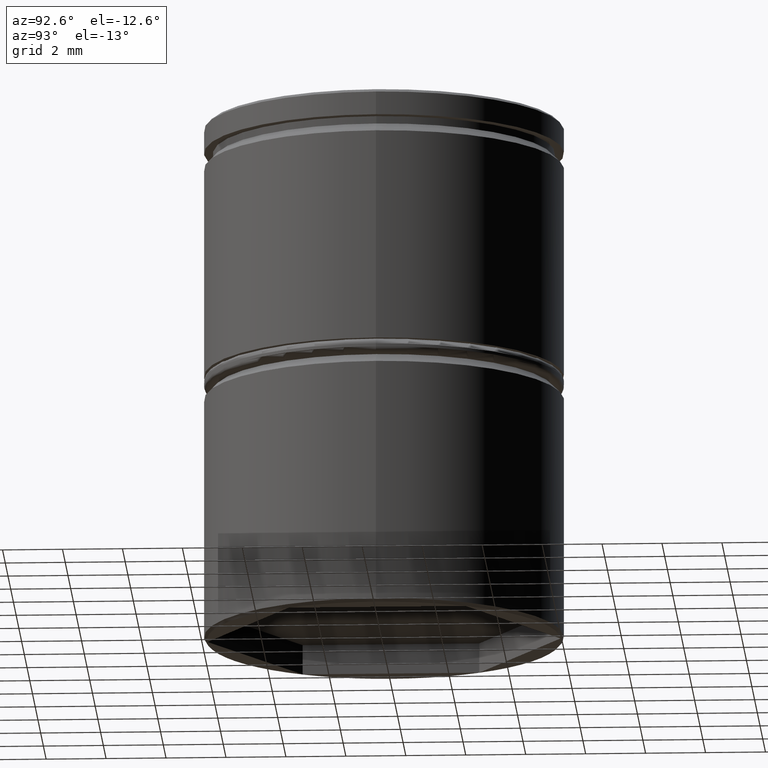
[diagram: clean part render]
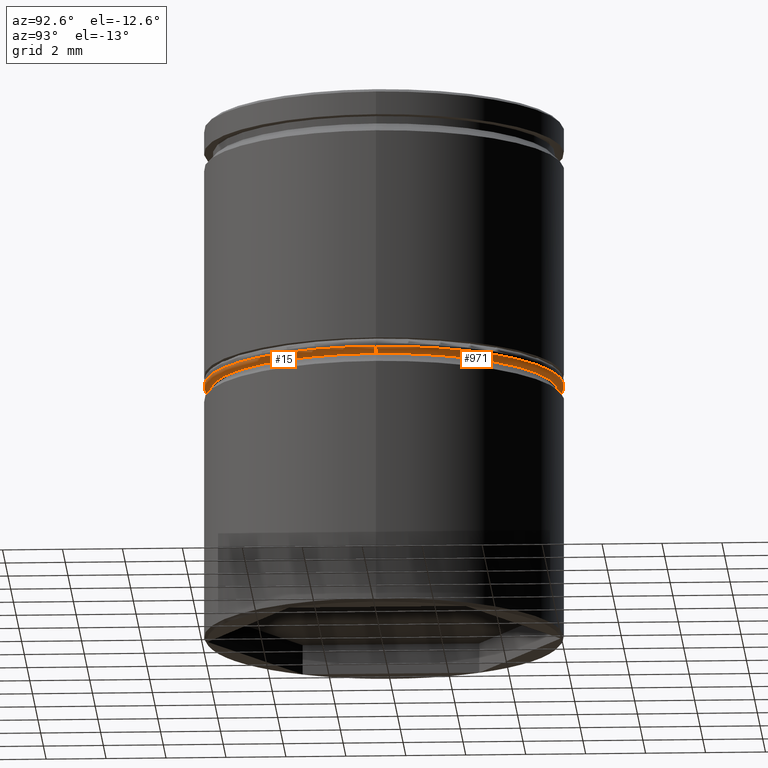
[diagram: same view with one multi-face feature highlighted, each face labeled with its STEP entity id]
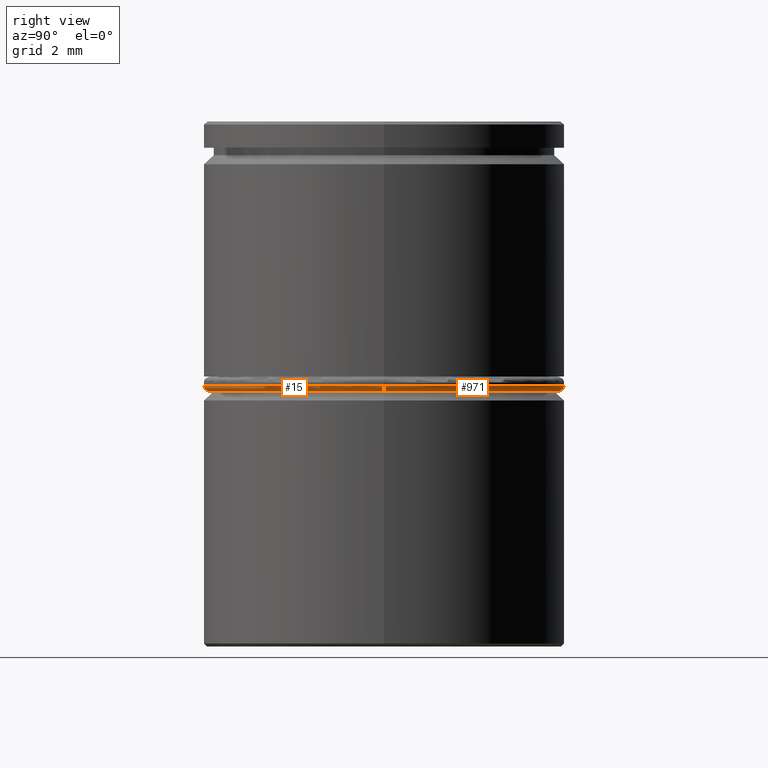
[diagram: same view with one multi-face feature highlighted, each face labeled with its STEP entity id]
A machine part, auxiliary view. The highlighted faces form ONE feature: a constant-radius fillet chain: 2 tangent blend faces with common blend radius 0.2 mm. The faces share edges in the B-rep.
A second angle (right view) of the same feature is appended — it is thin or edge-on in the first view.
Their STEP definitions:
[1] entity #15 (Torus):
#8 = EDGE_LOOP ( 'NONE', ( #187, #322, #51, #518 ) ) ;
#15 = ADVANCED_FACE ( 'NONE', ( #419 ), #476, .T. ) ;
#17 = DIRECTION ( 'NONE',  ( 0.000000000000000000, 0.000000000000000000, -1.000000000000000000 ) ) ;
#24 = DIRECTION ( 'NONE',  ( 1.224646799147353207E-16, 1.000000000000000000, -0.000000000000000000 ) ) ;
#27 = CARTESIAN_POINT ( 'NONE',  ( -6.000000000000000888, 7.347880794884120722E-16, -8.800000000000002487 ) ) ;
#41 = VERTEX_POINT ( 'NONE', #27 ) ;
#51 = ORIENTED_EDGE ( 'NONE', *, *, #468, .T. ) ;
#109 = DIRECTION ( 'NONE',  ( 1.000000000000000000, 0.000000000000000000, 0.000000000000000000 ) ) ;
#110 = VERTEX_POINT ( 'NONE', #835 ) ;
#119 = AXIS2_PLACEMENT_3D ( 'NONE', #677, #968, #109 ) ;
#141 = CARTESIAN_POINT ( 'NONE',  ( 0.000000000000000000, 0.000000000000000000, -9.000000000000001776 ) ) ;
#148 = CIRCLE ( 'NONE', #772, 5.800000000000001599 ) ;
#175 = VERTEX_POINT ( 'NONE', #521 ) ;
#187 = ORIENTED_EDGE ( 'NONE', *, *, #530, .F. ) ;
#189 = DIRECTION ( 'NONE',  ( 0.000000000000000000, -1.000000000000000000, 0.000000000000000000 ) ) ;
#241 = AXIS2_PLACEMENT_3D ( 'NONE', #388, #865, #621 ) ;
#257 = CIRCLE ( 'NONE', #241, 6.000000000000000888 ) ;
#258 = CARTESIAN_POINT ( 'NONE',  ( 5.800000000000001599, 0.000000000000000000, -8.800000000000002487 ) ) ;
#304 = EDGE_CURVE ( 'NONE', #41, #110, #257, .T. ) ;
#322 = ORIENTED_EDGE ( 'NONE', *, *, #651, .F. ) ;
#388 = CARTESIAN_POINT ( 'NONE',  ( 0.000000000000000000, 0.000000000000000000, -8.800000000000002487 ) ) ;
#396 = CIRCLE ( 'NONE', #787, 0.2000000000000005107 ) ;
#418 = CARTESIAN_POINT ( 'NONE',  ( -5.800000000000001599, 7.225416114969385180E-16, -9.000000000000001776 ) ) ;
#419 = FACE_OUTER_BOUND ( 'NONE', #8, .T. ) ;
#468 = EDGE_CURVE ( 'NONE', #175, #110, #396, .T. ) ;
#476 = TOROIDAL_SURFACE ( 'NONE', #119, 5.800000000000001599, 0.2000000000000000111 ) ;
#501 = DIRECTION ( 'NONE',  ( -1.000000000000000000, 1.224646799147353454E-16, 0.000000000000000000 ) ) ;
#518 = ORIENTED_EDGE ( 'NONE', *, *, #304, .F. ) ;
#521 = CARTESIAN_POINT ( 'NONE',  ( 5.800000000000001599, 0.000000000000000000, -9.000000000000001776 ) ) ;
#530 = EDGE_CURVE ( 'NONE', #873, #41, #847, .T. ) ;
#551 = DIRECTION ( 'NONE',  ( 1.000000000000000000, 0.000000000000000000, 0.000000000000000000 ) ) ;
#621 = DIRECTION ( 'NONE',  ( 1.000000000000000000, 0.000000000000000000, 0.000000000000000000 ) ) ;
#651 = EDGE_CURVE ( 'NONE', #175, #873, #148, .T. ) ;
#677 = CARTESIAN_POINT ( 'NONE',  ( 0.000000000000000000, 0.000000000000000000, -8.800000000000002487 ) ) ;
#705 = DIRECTION ( 'NONE',  ( -0.000000000000000000, -0.000000000000000000, -1.000000000000000000 ) ) ;
#772 = AXIS2_PLACEMENT_3D ( 'NONE', #141, #705, #551 ) ;
#787 = AXIS2_PLACEMENT_3D ( 'NONE', #258, #189, #17 ) ;
#798 = CARTESIAN_POINT ( 'NONE',  ( -5.800000000000001599, 7.102951435054649637E-16, -8.800000000000002487 ) ) ;
#835 = CARTESIAN_POINT ( 'NONE',  ( 6.000000000000000888, 0.000000000000000000, -8.800000000000002487 ) ) ;
#847 = CIRCLE ( 'NONE', #895, 0.1999999999999996503 ) ;
#865 = DIRECTION ( 'NONE',  ( 0.000000000000000000, 0.000000000000000000, 1.000000000000000000 ) ) ;
#873 = VERTEX_POINT ( 'NONE', #418 ) ;
#895 = AXIS2_PLACEMENT_3D ( 'NONE', #798, #24, #501 ) ;
#968 = DIRECTION ( 'NONE',  ( 0.000000000000000000, 0.000000000000000000, 1.000000000000000000 ) ) ;
[2] entity #971 (Torus):
#14 = ORIENTED_EDGE ( 'NONE', *, *, #855, .F. ) ;
#17 = DIRECTION ( 'NONE',  ( 0.000000000000000000, 0.000000000000000000, -1.000000000000000000 ) ) ;
#24 = DIRECTION ( 'NONE',  ( 1.224646799147353207E-16, 1.000000000000000000, -0.000000000000000000 ) ) ;
#27 = CARTESIAN_POINT ( 'NONE',  ( -6.000000000000000888, 7.347880794884120722E-16, -8.800000000000002487 ) ) ;
#31 = DIRECTION ( 'NONE',  ( 0.000000000000000000, 0.000000000000000000, 1.000000000000000000 ) ) ;
#41 = VERTEX_POINT ( 'NONE', #27 ) ;
#54 = ORIENTED_EDGE ( 'NONE', *, *, #468, .F. ) ;
#98 = AXIS2_PLACEMENT_3D ( 'NONE', #746, #31, #195 ) ;
#110 = VERTEX_POINT ( 'NONE', #835 ) ;
#175 = VERTEX_POINT ( 'NONE', #521 ) ;
#183 = DIRECTION ( 'NONE',  ( 0.000000000000000000, 0.000000000000000000, 1.000000000000000000 ) ) ;
#189 = DIRECTION ( 'NONE',  ( 0.000000000000000000, -1.000000000000000000, 0.000000000000000000 ) ) ;
#195 = DIRECTION ( 'NONE',  ( 1.000000000000000000, 0.000000000000000000, 0.000000000000000000 ) ) ;
#258 = CARTESIAN_POINT ( 'NONE',  ( 5.800000000000001599, 0.000000000000000000, -8.800000000000002487 ) ) ;
#283 = ORIENTED_EDGE ( 'NONE', *, *, #530, .T. ) ;
#312 = CIRCLE ( 'NONE', #361, 6.000000000000000888 ) ;
#361 = AXIS2_PLACEMENT_3D ( 'NONE', #880, #183, #496 ) ;
#378 = CIRCLE ( 'NONE', #657, 5.800000000000001599 ) ;
#396 = CIRCLE ( 'NONE', #787, 0.2000000000000005107 ) ;
#418 = CARTESIAN_POINT ( 'NONE',  ( -5.800000000000001599, 7.225416114969385180E-16, -9.000000000000001776 ) ) ;
#468 = EDGE_CURVE ( 'NONE', #175, #110, #396, .T. ) ;
#473 = TOROIDAL_SURFACE ( 'NONE', #98, 5.800000000000001599, 0.2000000000000000111 ) ;
#483 = EDGE_LOOP ( 'NONE', ( #14, #283, #914, #54 ) ) ;
#496 = DIRECTION ( 'NONE',  ( 1.000000000000000000, 0.000000000000000000, 0.000000000000000000 ) ) ;
#501 = DIRECTION ( 'NONE',  ( -1.000000000000000000, 1.224646799147353454E-16, 0.000000000000000000 ) ) ;
#521 = CARTESIAN_POINT ( 'NONE',  ( 5.800000000000001599, 0.000000000000000000, -9.000000000000001776 ) ) ;
#530 = EDGE_CURVE ( 'NONE', #873, #41, #847, .T. ) ;
#569 = DIRECTION ( 'NONE',  ( -0.000000000000000000, -0.000000000000000000, -1.000000000000000000 ) ) ;
#644 = DIRECTION ( 'NONE',  ( 1.000000000000000000, 0.000000000000000000, 0.000000000000000000 ) ) ;
#657 = AXIS2_PLACEMENT_3D ( 'NONE', #719, #569, #644 ) ;
#719 = CARTESIAN_POINT ( 'NONE',  ( 0.000000000000000000, 0.000000000000000000, -9.000000000000001776 ) ) ;
#739 = FACE_OUTER_BOUND ( 'NONE', #483, .T. ) ;
#746 = CARTESIAN_POINT ( 'NONE',  ( 0.000000000000000000, 0.000000000000000000, -8.800000000000002487 ) ) ;
#787 = AXIS2_PLACEMENT_3D ( 'NONE', #258, #189, #17 ) ;
#798 = CARTESIAN_POINT ( 'NONE',  ( -5.800000000000001599, 7.102951435054649637E-16, -8.800000000000002487 ) ) ;
#835 = CARTESIAN_POINT ( 'NONE',  ( 6.000000000000000888, 0.000000000000000000, -8.800000000000002487 ) ) ;
#847 = CIRCLE ( 'NONE', #895, 0.1999999999999996503 ) ;
#855 = EDGE_CURVE ( 'NONE', #873, #175, #378, .T. ) ;
#873 = VERTEX_POINT ( 'NONE', #418 ) ;
#880 = CARTESIAN_POINT ( 'NONE',  ( 0.000000000000000000, 0.000000000000000000, -8.800000000000002487 ) ) ;
#895 = AXIS2_PLACEMENT_3D ( 'NONE', #798, #24, #501 ) ;
#914 = ORIENTED_EDGE ( 'NONE', *, *, #935, .F. ) ;
#935 = EDGE_CURVE ( 'NONE', #110, #41, #312, .T. ) ;
#971 = ADVANCED_FACE ( 'NONE', ( #739 ), #473, .T. ) ;